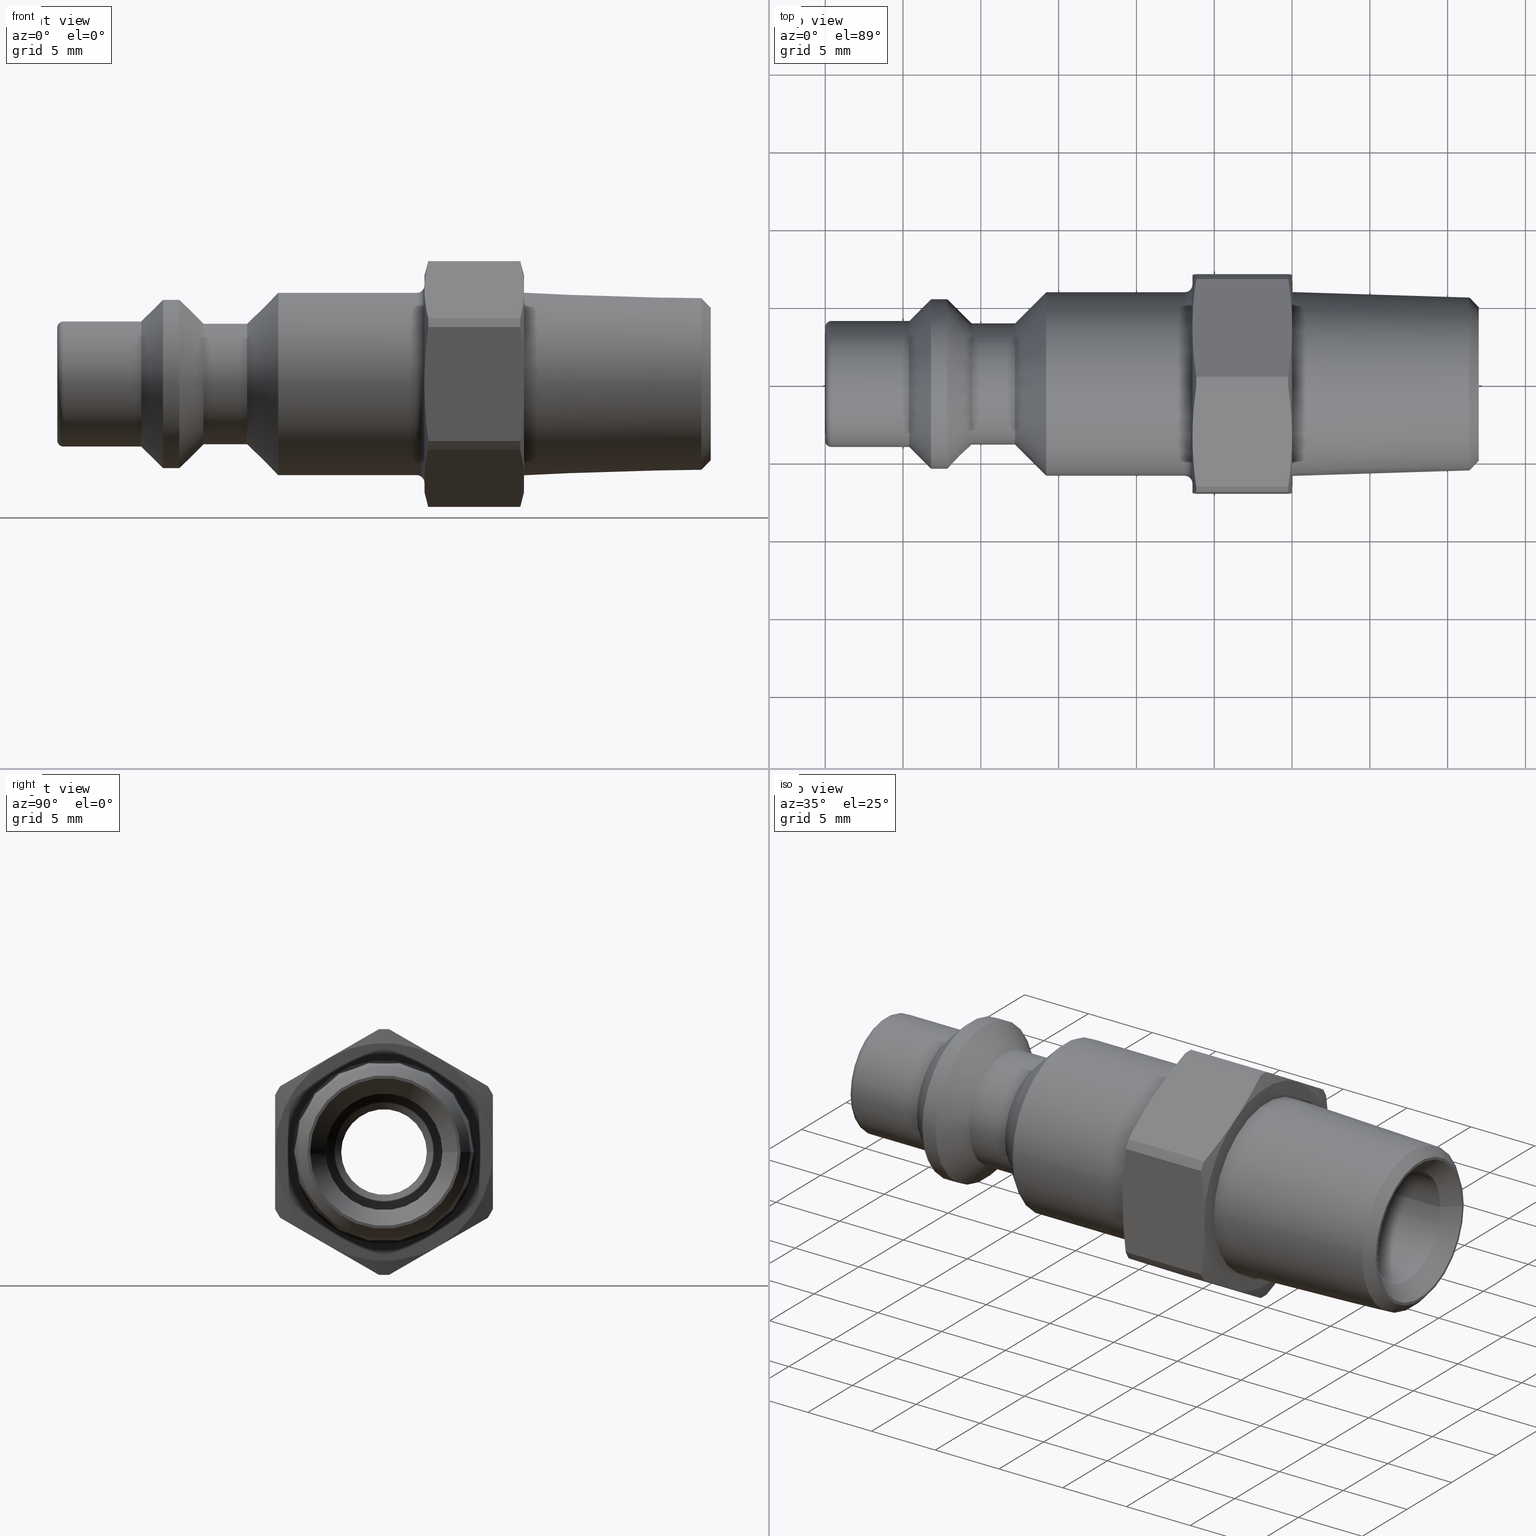
[diagram: canonical four-view strip — front | top / right | iso, engineering-drawing reading convention]
A machine part, canonical four-view strip (front | top / right | iso — engineering-drawing reading convention). The complete STEP part file that produces these views, byte-faithful:
ISO-10303-21;
HEADER;
/****************************************************************
 * Generated by software with PDElib inside                    *
 * PDElib Version v51a, created Wed 11/30/2011                  *
 * ITI Transcendata (http://www.transcendata.com/)              *
 ****************************************************************/
FILE_DESCRIPTION((''),'2;1');
FILE_NAME('J:\\3D Zeichnungen_step\\Serie 23\\23sfak13sxn.stp','2013-11-26T08:29:46',('IA176480'),(''),'Autodesk Inventor 2013','Autodesk Inventor 2013','');
FILE_SCHEMA(('AUTOMOTIVE_DESIGN { 1 0 10303 214 1 1 1 1 }'));
ENDSEC;
DATA;
#5=APPLICATION_CONTEXT('automotive design');
#6=APPLICATION_PROTOCOL_DEFINITION('International Standard','automotive_design',2001,#5);
#7=PRODUCT_CONTEXT('',#5,'mechanical');
#8=PRODUCT('D108572','D108572',$,(#7));
#9=PRODUCT_RELATED_PRODUCT_CATEGORY('part',$,(#8));
#10=PRODUCT_DEFINITION_FORMATION('',$,#8);
#11=PRODUCT_DEFINITION_CONTEXT('part definition',#5,'design');
#12=PRODUCT_DEFINITION('',$,#10,#11);
#18=(NAMED_UNIT(*)PLANE_ANGLE_UNIT()SI_UNIT($,.RADIAN.));
#19=DIMENSIONAL_EXPONENTS(0.0,0.0,0.0,0.0,0.0,0.0,0.0);
#20=PLANE_ANGLE_MEASURE_WITH_UNIT(PLANE_ANGLE_MEASURE(0.0174532925),#18);
#24=(CONVERSION_BASED_UNIT('DEGREE',#20)NAMED_UNIT(#19)PLANE_ANGLE_UNIT());
#28=(NAMED_UNIT(*)SI_UNIT($,.STERADIAN.)SOLID_ANGLE_UNIT());
#32=(LENGTH_UNIT()NAMED_UNIT(*)SI_UNIT(.MILLI.,.METRE.));
#34=UNCERTAINTY_MEASURE_WITH_UNIT(LENGTH_MEASURE(0.01),#32,'DISTANCE_ACCURACY_VALUE','');
#36=(GEOMETRIC_REPRESENTATION_CONTEXT(3)GLOBAL_UNCERTAINTY_ASSIGNED_CONTEXT((#34))GLOBAL_UNIT_ASSIGNED_CONTEXT((#24,#28,#32))REPRESENTATION_CONTEXT('None','None'));
#37=AXIS2_PLACEMENT_3D('',#38,#39,#40);
#38=CARTESIAN_POINT('',(0.0,0.0,0.0));
#39=DIRECTION('',(0.0,0.0,1.0));
#40=DIRECTION('',(1.0,0.0,0.0));
#41=SHAPE_REPRESENTATION('',(#37),#36);
#42=PRODUCT_DEFINITION_SHAPE('','',#12);
#43=SHAPE_DEFINITION_REPRESENTATION(#42,#41);
#49=(NAMED_UNIT(*)PLANE_ANGLE_UNIT()SI_UNIT($,.RADIAN.));
#50=DIMENSIONAL_EXPONENTS(0.0,0.0,0.0,0.0,0.0,0.0,0.0);
#51=PLANE_ANGLE_MEASURE_WITH_UNIT(PLANE_ANGLE_MEASURE(0.0174532925),#49);
#55=(CONVERSION_BASED_UNIT('DEGREE',#51)NAMED_UNIT(#50)PLANE_ANGLE_UNIT());
#59=(NAMED_UNIT(*)SI_UNIT($,.STERADIAN.)SOLID_ANGLE_UNIT());
#63=(LENGTH_UNIT()NAMED_UNIT(*)SI_UNIT(.MILLI.,.METRE.));
#65=UNCERTAINTY_MEASURE_WITH_UNIT(LENGTH_MEASURE(0.000001),#63,'DISTANCE_ACCURACY_VALUE','');
#67=(GEOMETRIC_REPRESENTATION_CONTEXT(3)GLOBAL_UNCERTAINTY_ASSIGNED_CONTEXT((#65))GLOBAL_UNIT_ASSIGNED_CONTEXT((#55,#59,#63))REPRESENTATION_CONTEXT('','3D'));
#68=CARTESIAN_POINT('',(41.700144760831378,0.0,-1.700629E-016));
#69=DIRECTION('',(-1.0,0.0,-5.671500E-016));
#70=DIRECTION('',(0.0,-1.0,0.0));
#71=AXIS2_PLACEMENT_3D('',#68,#69,#70);
#72=CONICAL_SURFACE('',#71,5.245357403445011,45.889999999999894);
#73=CARTESIAN_POINT('',(41.400289521662749,5.554675962514239,6.802516E-016));
#74=VERTEX_POINT('',#73);
#75=CARTESIAN_POINT('',(41.400289521662749,0.0,-3.401258E-016));
#76=DIRECTION('',(1.0,0.0,0.0));
#77=DIRECTION('',(0.0,-1.0,0.0));
#78=AXIS2_PLACEMENT_3D('',#75,#76,#77);
#79=CIRCLE('',#78,5.554675962514239);
#80=EDGE_CURVE('',#74,#74,#79,.T.);
#81=ORIENTED_EDGE('',*,*,#80,.T.);
#82=EDGE_LOOP('',(#81));
#83=FACE_OUTER_BOUND('',#82,.T.);
#84=CARTESIAN_POINT('',(42.0,4.936038844375784,-6.044904E-016));
#85=VERTEX_POINT('',#84);
#86=CARTESIAN_POINT('',(42.0,0.0,0.0));
#87=DIRECTION('',(-1.0,0.0,0.0));
#88=DIRECTION('',(0.0,-1.0,0.0));
#89=AXIS2_PLACEMENT_3D('',#86,#87,#88);
#90=CIRCLE('',#89,4.936038844375784);
#91=EDGE_CURVE('',#85,#85,#90,.T.);
#92=ORIENTED_EDGE('',*,*,#91,.T.);
#93=EDGE_LOOP('',(#92));
#94=FACE_BOUND('',#93,.T.);
#95=ADVANCED_FACE('',(#83,#94),#72,.T.);
#96=CARTESIAN_POINT('',(42.0,4.643019422187894,0.0));
#97=DIRECTION('',(1.0,0.0,0.0));
#98=DIRECTION('',(0.0,0.0,-1.0));
#99=AXIS2_PLACEMENT_3D('',#96,#97,#98);
#100=PLANE('',#99);
#101=ORIENTED_EDGE('',*,*,#91,.F.);
#102=EDGE_LOOP('',(#101));
#103=FACE_OUTER_BOUND('',#102,.T.);
#104=CARTESIAN_POINT('',(42.0,4.750000000000004,5.817072E-016));
#105=VERTEX_POINT('',#104);
#106=CARTESIAN_POINT('',(42.0,0.0,0.0));
#107=DIRECTION('',(1.0,0.0,0.0));
#108=DIRECTION('',(0.0,-1.0,0.0));
#109=AXIS2_PLACEMENT_3D('',#106,#107,#108);
#110=CIRCLE('',#109,4.750000000000004);
#111=EDGE_CURVE('',#105,#105,#110,.T.);
#112=ORIENTED_EDGE('',*,*,#111,.F.);
#113=EDGE_LOOP('',(#112));
#114=FACE_BOUND('',#113,.T.);
#115=ADVANCED_FACE('',(#103,#114),#100,.T.);
#116=CARTESIAN_POINT('',(36.0,0.0,0.0));
#117=DIRECTION('',(-1.0,0.0,0.0));
#118=DIRECTION('',(0.0,1.0,0.0));
#119=AXIS2_PLACEMENT_3D('',#116,#117,#118);
#120=CONICAL_SURFACE('',#119,5.722500000000004,1.78000000000003);
#121=CARTESIAN_POINT('',(30.0,5.908961155624222,0.0));
#122=VERTEX_POINT('',#121);
#123=CARTESIAN_POINT('',(30.0,0.0,0.0));
#124=DIRECTION('',(1.0,0.0,0.0));
#125=DIRECTION('',(0.0,1.0,0.0));
#126=AXIS2_PLACEMENT_3D('',#123,#124,#125);
#127=CIRCLE('',#126,5.908961155624222);
#128=EDGE_CURVE('',#122,#122,#127,.T.);
#129=ORIENTED_EDGE('',*,*,#128,.T.);
#130=EDGE_LOOP('',(#129));
#131=FACE_OUTER_BOUND('',#130,.T.);
#132=ORIENTED_EDGE('',*,*,#80,.F.);
#133=EDGE_LOOP('',(#132));
#134=FACE_BOUND('',#133,.T.);
#135=ADVANCED_FACE('',(#131,#134),#120,.T.);
#136=CARTESIAN_POINT('',(41.5,0.0,0.0));
#137=DIRECTION('',(1.0,0.0,0.0));
#138=DIRECTION('',(0.0,-1.0,0.0));
#139=AXIS2_PLACEMENT_3D('',#136,#137,#138);
#140=CONICAL_SURFACE('',#139,4.25,45.000000000000306);
#141=ORIENTED_EDGE('',*,*,#111,.T.);
#142=EDGE_LOOP('',(#141));
#143=FACE_OUTER_BOUND('',#142,.T.);
#144=CARTESIAN_POINT('',(41.000000000000007,3.749999999999997,-4.592425E-016));
#145=VERTEX_POINT('',#144);
#146=CARTESIAN_POINT('',(41.000000000000007,0.0,0.0));
#147=DIRECTION('',(-1.0,0.0,0.0));
#148=DIRECTION('',(0.0,-1.0,0.0));
#149=AXIS2_PLACEMENT_3D('',#146,#147,#148);
#150=CIRCLE('',#149,3.749999999999997);
#151=EDGE_CURVE('',#145,#145,#150,.T.);
#152=ORIENTED_EDGE('',*,*,#151,.T.);
#153=EDGE_LOOP('',(#152));
#154=FACE_BOUND('',#153,.T.);
#155=ADVANCED_FACE('',(#143,#154),#140,.F.);
#156=CARTESIAN_POINT('',(30.5,0.0,0.0));
#157=DIRECTION('',(1.0,0.0,0.0));
#158=DIRECTION('',(0.0,1.0,0.0));
#159=AXIS2_PLACEMENT_3D('',#156,#157,#158);
#160=CYLINDRICAL_SURFACE('',#159,3.749999999999997);
#161=CARTESIAN_POINT('',(19.0,3.749999999999991,0.0));
#162=VERTEX_POINT('',#161);
#163=CARTESIAN_POINT('',(19.0,0.0,0.0));
#164=DIRECTION('',(1.0,0.0,0.0));
#165=DIRECTION('',(0.0,1.0,0.0));
#166=AXIS2_PLACEMENT_3D('',#163,#164,#165);
#167=CIRCLE('',#166,3.749999999999991);
#168=EDGE_CURVE('',#162,#162,#167,.T.);
#169=ORIENTED_EDGE('',*,*,#168,.F.);
#170=EDGE_LOOP('',(#169));
#171=FACE_OUTER_BOUND('',#170,.T.);
#172=ORIENTED_EDGE('',*,*,#151,.F.);
#173=EDGE_LOOP('',(#172));
#174=FACE_BOUND('',#173,.T.);
#175=ADVANCED_FACE('',(#171,#174),#160,.F.);
#176=CARTESIAN_POINT('',(22.578428315368619,3.499999999999996,-6.062177826491075));
#177=DIRECTION('',(0.0,-0.499999999999999,0.866025403784439));
#178=DIRECTION('',(1.0,0.0,0.0));
#179=AXIS2_PLACEMENT_3D('',#176,#177,#178);
#180=PLANE('',#179);
#181=CARTESIAN_POINT('',(23.84115427318801,6.671356176779892,-4.231194484131024));
#182=VERTEX_POINT('',#181);
#183=CARTESIAN_POINT('',(23.600000000000001,3.499999999999996,-6.062177826491075));
#184=VERTEX_POINT('',#183);
#185=CARTESIAN_POINT('',(23.841154273188017,6.671356176779907,-4.231194484131015));
#186=CARTESIAN_POINT('',(23.600000000000001,4.989898874997301,-5.201984309946061));
#187=CARTESIAN_POINT('',(23.600000000000001,3.499999999999996,-6.062177826491075));
#195=(BOUNDED_CURVE()B_SPLINE_CURVE(2,(#185,#186,#187),.UNSPECIFIED.,.F.,.U.)B_SPLINE_CURVE_WITH_KNOTS((3,3),(0.0,0.367169590188577),.UNSPECIFIED.)CURVE()GEOMETRIC_REPRESENTATION_ITEM()RATIONAL_B_SPLINE_CURVE((1.0,1.031642241421743,1.0))REPRESENTATION_ITEM(''));
#196=EDGE_CURVE('',#182,#184,#195,.T.);
#197=ORIENTED_EDGE('',*,*,#196,.F.);
#198=CARTESIAN_POINT('',(29.758845726811984,6.671356176779892,-4.231194484131024));
#199=VERTEX_POINT('',#198);
#200=CARTESIAN_POINT('',(29.75884572681198,6.671356176779892,-4.231194484131024));
#201=DIRECTION('',(-1.0,0.0,0.0));
#202=VECTOR('',#201,5.91769145362397);
#203=LINE('',#200,#202);
#204=EDGE_CURVE('',#199,#182,#203,.T.);
#205=ORIENTED_EDGE('',*,*,#204,.F.);
#206=CARTESIAN_POINT('',(30.0,3.499999999999996,-6.062177826491075));
#207=VERTEX_POINT('',#206);
#208=CARTESIAN_POINT('',(30.0,3.499999999999996,-6.062177826491077));
#209=CARTESIAN_POINT('',(30.0,4.989898874997319,-5.201984309946052));
#210=CARTESIAN_POINT('',(29.758845726811984,6.67135617677994,-4.231194484130996));
#218=(BOUNDED_CURVE()B_SPLINE_CURVE(2,(#208,#209,#210),.UNSPECIFIED.,.F.,.U.)B_SPLINE_CURVE_WITH_KNOTS((3,3),(0.36716959018858,0.734339180377161),.UNSPECIFIED.)CURVE()GEOMETRIC_REPRESENTATION_ITEM()RATIONAL_B_SPLINE_CURVE((1.0,1.031642241421783,1.0))REPRESENTATION_ITEM(''));
#219=EDGE_CURVE('',#207,#199,#218,.T.);
#220=ORIENTED_EDGE('',*,*,#219,.F.);
#221=CARTESIAN_POINT('',(29.758845726811984,0.328643823220099,-7.893161168851127));
#222=VERTEX_POINT('',#221);
#223=CARTESIAN_POINT('',(29.758845726811984,0.328643823220052,-7.893161168851155));
#224=CARTESIAN_POINT('',(30.0,2.010101125002673,-6.922371343036099));
#225=CARTESIAN_POINT('',(30.0,3.499999999999996,-6.062177826491077));
#233=(BOUNDED_CURVE()B_SPLINE_CURVE(2,(#223,#224,#225),.UNSPECIFIED.,.F.,.U.)B_SPLINE_CURVE_WITH_KNOTS((3,3),(0.0,0.36716959018858),.UNSPECIFIED.)CURVE()GEOMETRIC_REPRESENTATION_ITEM()RATIONAL_B_SPLINE_CURVE((1.0,1.031642241421795,1.0))REPRESENTATION_ITEM(''));
#234=EDGE_CURVE('',#222,#207,#233,.T.);
#235=ORIENTED_EDGE('',*,*,#234,.F.);
#236=CARTESIAN_POINT('',(23.84115427318801,0.328643823220099,-7.893161168851127));
#237=VERTEX_POINT('',#236);
#238=CARTESIAN_POINT('',(23.84115427318801,0.328643823220099,-7.893161168851127));
#239=DIRECTION('',(1.0,0.0,0.0));
#240=VECTOR('',#239,5.91769145362397);
#241=LINE('',#238,#240);
#242=EDGE_CURVE('',#237,#222,#241,.T.);
#243=ORIENTED_EDGE('',*,*,#242,.F.);
#244=CARTESIAN_POINT('',(23.600000000000001,3.499999999999996,-6.062177826491075));
#245=CARTESIAN_POINT('',(23.600000000000001,2.010101125002689,-6.92237134303609));
#246=CARTESIAN_POINT('',(23.841154273188017,0.328643823220083,-7.893161168851137));
#254=(BOUNDED_CURVE()B_SPLINE_CURVE(2,(#244,#245,#246),.UNSPECIFIED.,.F.,.U.)B_SPLINE_CURVE_WITH_KNOTS((3,3),(0.367169590188577,0.734339180377154),.UNSPECIFIED.)CURVE()GEOMETRIC_REPRESENTATION_ITEM()RATIONAL_B_SPLINE_CURVE((1.0,1.031642241421732,1.0))REPRESENTATION_ITEM(''));
#255=EDGE_CURVE('',#184,#237,#254,.T.);
#256=ORIENTED_EDGE('',*,*,#255,.F.);
#257=EDGE_LOOP('',(#197,#205,#220,#235,#243,#256));
#258=FACE_OUTER_BOUND('',#257,.T.);
#259=ADVANCED_FACE('',(#258),#180,.F.);
#260=CARTESIAN_POINT('',(22.578428315368619,-3.500000000000003,-6.06217782649107));
#261=DIRECTION('',(0.0,0.5,0.866025403784438));
#262=DIRECTION('',(1.0,0.0,0.0));
#263=AXIS2_PLACEMENT_3D('',#260,#261,#262);
#264=PLANE('',#263);
#265=CARTESIAN_POINT('',(23.84115427318801,-0.328643823220108,-7.893161168851127));
#266=VERTEX_POINT('',#265);
#267=CARTESIAN_POINT('',(23.600000000000001,-3.500000000000004,-6.06217782649107));
#268=VERTEX_POINT('',#267);
#269=CARTESIAN_POINT('',(23.841154273188017,-0.328643823220092,-7.893161168851136));
#270=CARTESIAN_POINT('',(23.600000000000001,-2.010101125002719,-6.922371343036073));
#271=CARTESIAN_POINT('',(23.600000000000001,-3.500000000000004,-6.06217782649107));
#279=(BOUNDED_CURVE()B_SPLINE_CURVE(2,(#269,#270,#271),.UNSPECIFIED.,.F.,.U.)B_SPLINE_CURVE_WITH_KNOTS((3,3),(0.0,0.367169590188577),.UNSPECIFIED.)CURVE()GEOMETRIC_REPRESENTATION_ITEM()RATIONAL_B_SPLINE_CURVE((1.0,1.031642241421751,1.0))REPRESENTATION_ITEM(''));
#280=EDGE_CURVE('',#266,#268,#279,.T.);
#281=ORIENTED_EDGE('',*,*,#280,.F.);
#282=CARTESIAN_POINT('',(29.758845726811984,-0.328643823220107,-7.893161168851127));
#283=VERTEX_POINT('',#282);
#284=CARTESIAN_POINT('',(29.75884572681198,-0.328643823220108,-7.893161168851127));
#285=DIRECTION('',(-1.0,0.0,0.0));
#286=VECTOR('',#285,5.91769145362397);
#287=LINE('',#284,#286);
#288=EDGE_CURVE('',#283,#266,#287,.T.);
#289=ORIENTED_EDGE('',*,*,#288,.F.);
#290=CARTESIAN_POINT('',(30.0,-3.500000000000004,-6.06217782649107));
#291=VERTEX_POINT('',#290);
#292=CARTESIAN_POINT('',(30.0,-3.500000000000004,-6.06217782649107));
#293=CARTESIAN_POINT('',(30.0,-2.010101125002703,-6.922371343036085));
#294=CARTESIAN_POINT('',(29.758845726811984,-0.32864382322006,-7.893161168851155));
#302=(BOUNDED_CURVE()B_SPLINE_CURVE(2,(#292,#293,#294),.UNSPECIFIED.,.F.,.U.)B_SPLINE_CURVE_WITH_KNOTS((3,3),(0.367169590188581,0.734339180377162),.UNSPECIFIED.)CURVE()GEOMETRIC_REPRESENTATION_ITEM()RATIONAL_B_SPLINE_CURVE((1.0,1.031642241421809,1.0))REPRESENTATION_ITEM(''));
#303=EDGE_CURVE('',#291,#283,#302,.T.);
#304=ORIENTED_EDGE('',*,*,#303,.F.);
#305=CARTESIAN_POINT('',(29.758845726811984,-6.6713561767799,-4.231194484131012));
#306=VERTEX_POINT('',#305);
#307=CARTESIAN_POINT('',(29.758845726811984,-6.671356176779947,-4.231194484130985));
#308=CARTESIAN_POINT('',(30.0,-4.989898874997305,-5.201984309946056));
#309=CARTESIAN_POINT('',(30.0,-3.500000000000004,-6.06217782649107));
#317=(BOUNDED_CURVE()B_SPLINE_CURVE(2,(#307,#308,#309),.UNSPECIFIED.,.F.,.U.)B_SPLINE_CURVE_WITH_KNOTS((3,3),(0.0,0.367169590188581),.UNSPECIFIED.)CURVE()GEOMETRIC_REPRESENTATION_ITEM()RATIONAL_B_SPLINE_CURVE((1.0,1.031642241421807,1.0))REPRESENTATION_ITEM(''));
#318=EDGE_CURVE('',#306,#291,#317,.T.);
#319=ORIENTED_EDGE('',*,*,#318,.F.);
#320=CARTESIAN_POINT('',(23.84115427318801,-6.671356176779899,-4.231194484131012));
#321=VERTEX_POINT('',#320);
#322=CARTESIAN_POINT('',(23.84115427318801,-6.671356176779899,-4.231194484131012));
#323=DIRECTION('',(1.0,0.0,0.0));
#324=VECTOR('',#323,5.91769145362397);
#325=LINE('',#322,#324);
#326=EDGE_CURVE('',#321,#306,#325,.T.);
#327=ORIENTED_EDGE('',*,*,#326,.F.);
#328=CARTESIAN_POINT('',(23.600000000000001,-3.500000000000004,-6.06217782649107));
#329=CARTESIAN_POINT('',(23.600000000000001,-4.989898874997288,-5.201984309946067));
#330=CARTESIAN_POINT('',(23.841154273188017,-6.671356176779915,-4.231194484131003));
#338=(BOUNDED_CURVE()B_SPLINE_CURVE(2,(#328,#329,#330),.UNSPECIFIED.,.F.,.U.)B_SPLINE_CURVE_WITH_KNOTS((3,3),(0.367169590188577,0.734339180377154),.UNSPECIFIED.)CURVE()GEOMETRIC_REPRESENTATION_ITEM()RATIONAL_B_SPLINE_CURVE((1.0,1.031642241421757,1.0))REPRESENTATION_ITEM(''));
#339=EDGE_CURVE('',#268,#321,#338,.T.);
#340=ORIENTED_EDGE('',*,*,#339,.F.);
#341=EDGE_LOOP('',(#281,#289,#304,#319,#327,#340));
#342=FACE_OUTER_BOUND('',#341,.T.);
#343=ADVANCED_FACE('',(#342),#264,.F.);
#344=CARTESIAN_POINT('',(22.578428315368619,-7.000000000000002,1.110223E-015));
#345=DIRECTION('',(0.0,1.0,0.0));
#346=DIRECTION('',(1.0,0.0,0.0));
#347=AXIS2_PLACEMENT_3D('',#344,#345,#346);
#348=PLANE('',#347);
#349=CARTESIAN_POINT('',(23.84115427318801,-7.000000000000003,-3.661966684720108));
#350=VERTEX_POINT('',#349);
#351=CARTESIAN_POINT('',(23.600000000000001,-7.000000000000002,1.165734E-015));
#352=VERTEX_POINT('',#351);
#353=CARTESIAN_POINT('',(23.841154273188017,-7.000000000000003,-3.661966684720126));
#354=CARTESIAN_POINT('',(23.600000000000001,-7.000000000000002,-1.720387033090005));
#355=CARTESIAN_POINT('',(23.600000000000001,-7.000000000000002,1.165734E-015));
#363=(BOUNDED_CURVE()B_SPLINE_CURVE(2,(#353,#354,#355),.UNSPECIFIED.,.F.,.U.)B_SPLINE_CURVE_WITH_KNOTS((3,3),(0.0,0.367169590188577),.UNSPECIFIED.)CURVE()GEOMETRIC_REPRESENTATION_ITEM()RATIONAL_B_SPLINE_CURVE((1.0,1.031642241421747,1.0))REPRESENTATION_ITEM(''));
#364=EDGE_CURVE('',#350,#352,#363,.T.);
#365=ORIENTED_EDGE('',*,*,#364,.F.);
#366=CARTESIAN_POINT('',(29.758845726811984,-7.000000000000003,-3.661966684720109));
#367=VERTEX_POINT('',#366);
#368=CARTESIAN_POINT('',(29.75884572681198,-7.000000000000003,-3.661966684720108));
#369=DIRECTION('',(-1.0,0.0,0.0));
#370=VECTOR('',#369,5.91769145362397);
#371=LINE('',#368,#370);
#372=EDGE_CURVE('',#367,#350,#371,.T.);
#373=ORIENTED_EDGE('',*,*,#372,.F.);
#374=CARTESIAN_POINT('',(30.0,-7.000000000000002,1.165734E-015));
#375=VERTEX_POINT('',#374);
#376=CARTESIAN_POINT('',(30.0,-7.000000000000002,1.165734E-015));
#377=CARTESIAN_POINT('',(30.000000000000004,-7.000000000000002,-1.720387033089991));
#378=CARTESIAN_POINT('',(29.758845726811984,-7.000000000000003,-3.66196668472016));
#386=(BOUNDED_CURVE()B_SPLINE_CURVE(2,(#376,#377,#378),.UNSPECIFIED.,.F.,.U.)B_SPLINE_CURVE_WITH_KNOTS((3,3),(0.36716959018858,0.734339180377161),.UNSPECIFIED.)CURVE()GEOMETRIC_REPRESENTATION_ITEM()RATIONAL_B_SPLINE_CURVE((1.0,1.031642241421751,1.0))REPRESENTATION_ITEM(''));
#387=EDGE_CURVE('',#375,#367,#386,.T.);
#388=ORIENTED_EDGE('',*,*,#387,.F.);
#389=CARTESIAN_POINT('',(29.758845726811984,-7.000000000000001,3.661966684720111));
#390=VERTEX_POINT('',#389);
#391=CARTESIAN_POINT('',(29.758845726811984,-7.000000000000001,3.661966684720163));
#392=CARTESIAN_POINT('',(30.000000000000004,-7.000000000000002,1.720387033089994));
#393=CARTESIAN_POINT('',(30.0,-7.000000000000002,1.165734E-015));
#401=(BOUNDED_CURVE()B_SPLINE_CURVE(2,(#391,#392,#393),.UNSPECIFIED.,.F.,.U.)B_SPLINE_CURVE_WITH_KNOTS((3,3),(0.0,0.36716959018858),.UNSPECIFIED.)CURVE()GEOMETRIC_REPRESENTATION_ITEM()RATIONAL_B_SPLINE_CURVE((1.0,1.031642241421746,1.0))REPRESENTATION_ITEM(''));
#402=EDGE_CURVE('',#390,#375,#401,.T.);
#403=ORIENTED_EDGE('',*,*,#402,.F.);
#404=CARTESIAN_POINT('',(23.84115427318801,-7.000000000000001,3.66196668472011));
#405=VERTEX_POINT('',#404);
#406=CARTESIAN_POINT('',(23.84115427318801,-7.000000000000001,3.66196668472011));
#407=DIRECTION('',(1.0,0.0,0.0));
#408=VECTOR('',#407,5.91769145362397);
#409=LINE('',#406,#408);
#410=EDGE_CURVE('',#405,#390,#409,.T.);
#411=ORIENTED_EDGE('',*,*,#410,.F.);
#412=CARTESIAN_POINT('',(23.600000000000001,-7.000000000000002,1.165734E-015));
#413=CARTESIAN_POINT('',(23.600000000000001,-7.000000000000002,1.720387033090007));
#414=CARTESIAN_POINT('',(23.841154273188017,-7.000000000000002,3.661966684720129));
#422=(BOUNDED_CURVE()B_SPLINE_CURVE(2,(#412,#413,#414),.UNSPECIFIED.,.F.,.U.)B_SPLINE_CURVE_WITH_KNOTS((3,3),(0.367169590188577,0.734339180377154),.UNSPECIFIED.)CURVE()GEOMETRIC_REPRESENTATION_ITEM()RATIONAL_B_SPLINE_CURVE((1.0,1.031642241421744,1.0))REPRESENTATION_ITEM(''));
#423=EDGE_CURVE('',#352,#405,#422,.T.);
#424=ORIENTED_EDGE('',*,*,#423,.F.);
#425=EDGE_LOOP('',(#365,#373,#388,#403,#411,#424));
#426=FACE_OUTER_BOUND('',#425,.T.);
#427=ADVANCED_FACE('',(#426),#348,.F.);
#428=CARTESIAN_POINT('',(22.578428315368619,-3.5,6.062177826491072));
#429=DIRECTION('',(0.0,0.5,-0.866025403784439));
#430=DIRECTION('',(1.0,0.0,0.0));
#431=AXIS2_PLACEMENT_3D('',#428,#429,#430);
#432=PLANE('',#431);
#433=CARTESIAN_POINT('',(23.84115427318801,-6.671356176779895,4.231194484131019));
#434=VERTEX_POINT('',#433);
#435=CARTESIAN_POINT('',(23.600000000000001,-3.5,6.062177826491073));
#436=VERTEX_POINT('',#435);
#437=CARTESIAN_POINT('',(23.841154273188017,-6.671356176779907,4.231194484131012));
#438=CARTESIAN_POINT('',(23.600000000000001,-4.989898874997304,5.201984309946059));
#439=CARTESIAN_POINT('',(23.600000000000001,-3.499999999999999,6.062177826491073));
#447=(BOUNDED_CURVE()B_SPLINE_CURVE(2,(#437,#438,#439),.UNSPECIFIED.,.F.,.U.)B_SPLINE_CURVE_WITH_KNOTS((3,3),(0.0,0.367169590188577),.UNSPECIFIED.)CURVE()GEOMETRIC_REPRESENTATION_ITEM()RATIONAL_B_SPLINE_CURVE((1.0,1.031642241421739,1.0))REPRESENTATION_ITEM(''));
#448=EDGE_CURVE('',#434,#436,#447,.T.);
#449=ORIENTED_EDGE('',*,*,#448,.F.);
#450=CARTESIAN_POINT('',(29.758845726811984,-6.671356176779896,4.231194484131019));
#451=VERTEX_POINT('',#450);
#452=CARTESIAN_POINT('',(29.75884572681198,-6.671356176779895,4.231194484131019));
#453=DIRECTION('',(-1.0,0.0,0.0));
#454=VECTOR('',#453,5.91769145362397);
#455=LINE('',#452,#454);
#456=EDGE_CURVE('',#451,#434,#455,.T.);
#457=ORIENTED_EDGE('',*,*,#456,.F.);
#458=CARTESIAN_POINT('',(30.0,-3.5,6.062177826491073));
#459=VERTEX_POINT('',#458);
#460=CARTESIAN_POINT('',(30.0,-3.499999999999999,6.062177826491073));
#461=CARTESIAN_POINT('',(30.0,-4.989898874997324,5.201984309946047));
#462=CARTESIAN_POINT('',(29.758845726811984,-6.671356176779942,4.231194484130992));
#470=(BOUNDED_CURVE()B_SPLINE_CURVE(2,(#460,#461,#462),.UNSPECIFIED.,.F.,.U.)B_SPLINE_CURVE_WITH_KNOTS((3,3),(0.36716959018858,0.734339180377161),.UNSPECIFIED.)CURVE()GEOMETRIC_REPRESENTATION_ITEM()RATIONAL_B_SPLINE_CURVE((1.0,1.031642241421797,1.0))REPRESENTATION_ITEM(''));
#471=EDGE_CURVE('',#459,#451,#470,.T.);
#472=ORIENTED_EDGE('',*,*,#471,.F.);
#473=CARTESIAN_POINT('',(29.758845726811984,-0.328643823220104,7.893161168851127));
#474=VERTEX_POINT('',#473);
#475=CARTESIAN_POINT('',(29.758845726811984,-0.328643823220057,7.893161168851154));
#476=CARTESIAN_POINT('',(30.0,-2.010101125002676,6.922371343036097));
#477=CARTESIAN_POINT('',(30.0,-3.499999999999999,6.062177826491073));
#485=(BOUNDED_CURVE()B_SPLINE_CURVE(2,(#475,#476,#477),.UNSPECIFIED.,.F.,.U.)B_SPLINE_CURVE_WITH_KNOTS((3,3),(0.0,0.36716959018858),.UNSPECIFIED.)CURVE()GEOMETRIC_REPRESENTATION_ITEM()RATIONAL_B_SPLINE_CURVE((1.0,1.031642241421797,1.0))REPRESENTATION_ITEM(''));
#486=EDGE_CURVE('',#474,#459,#485,.T.);
#487=ORIENTED_EDGE('',*,*,#486,.F.);
#488=CARTESIAN_POINT('',(23.84115427318801,-0.328643823220105,7.893161168851126));
#489=VERTEX_POINT('',#488);
#490=CARTESIAN_POINT('',(23.84115427318801,-0.328643823220105,7.893161168851126));
#491=DIRECTION('',(1.0,0.0,0.0));
#492=VECTOR('',#491,5.91769145362397);
#493=LINE('',#490,#492);
#494=EDGE_CURVE('',#489,#474,#493,.T.);
#495=ORIENTED_EDGE('',*,*,#494,.F.);
#496=CARTESIAN_POINT('',(23.600000000000001,-3.499999999999999,6.062177826491073));
#497=CARTESIAN_POINT('',(23.600000000000001,-2.010101125002695,6.922371343036088));
#498=CARTESIAN_POINT('',(23.841154273188017,-0.328643823220091,7.893161168851135));
#506=(BOUNDED_CURVE()B_SPLINE_CURVE(2,(#496,#497,#498),.UNSPECIFIED.,.F.,.U.)B_SPLINE_CURVE_WITH_KNOTS((3,3),(0.367169590188577,0.734339180377153),.UNSPECIFIED.)CURVE()GEOMETRIC_REPRESENTATION_ITEM()RATIONAL_B_SPLINE_CURVE((1.0,1.031642241421737,1.0))REPRESENTATION_ITEM(''));
#507=EDGE_CURVE('',#436,#489,#506,.T.);
#508=ORIENTED_EDGE('',*,*,#507,.F.);
#509=EDGE_LOOP('',(#449,#457,#472,#487,#495,#508));
#510=FACE_OUTER_BOUND('',#509,.T.);
#511=ADVANCED_FACE('',(#510),#432,.F.);
#512=CARTESIAN_POINT('',(22.578428315368619,3.500000000000001,6.062177826491071));
#513=DIRECTION('',(0.0,-0.5,-0.866025403784439));
#514=DIRECTION('',(1.0,0.0,0.0));
#515=AXIS2_PLACEMENT_3D('',#512,#513,#514);
#516=PLANE('',#515);
#517=CARTESIAN_POINT('',(23.84115427318801,0.328643823220105,7.893161168851126));
#518=VERTEX_POINT('',#517);
#519=CARTESIAN_POINT('',(23.600000000000001,3.500000000000001,6.062177826491071));
#520=VERTEX_POINT('',#519);
#521=CARTESIAN_POINT('',(23.841154273188017,0.328643823220089,7.893161168851136));
#522=CARTESIAN_POINT('',(23.600000000000001,2.010101125002731,6.922371343036067));
#523=CARTESIAN_POINT('',(23.599999999999998,3.500000000000001,6.062177826491071));
#531=(BOUNDED_CURVE()B_SPLINE_CURVE(2,(#521,#522,#523),.UNSPECIFIED.,.F.,.U.)B_SPLINE_CURVE_WITH_KNOTS((3,3),(0.0,0.367169590188577),.UNSPECIFIED.)CURVE()GEOMETRIC_REPRESENTATION_ITEM()RATIONAL_B_SPLINE_CURVE((1.0,1.031642241421772,1.0))REPRESENTATION_ITEM(''));
#532=EDGE_CURVE('',#518,#520,#531,.T.);
#533=ORIENTED_EDGE('',*,*,#532,.F.);
#534=CARTESIAN_POINT('',(29.758845726811984,0.328643823220104,7.893161168851127));
#535=VERTEX_POINT('',#534);
#536=CARTESIAN_POINT('',(29.75884572681198,0.328643823220105,7.893161168851126));
#537=DIRECTION('',(-1.0,0.0,0.0));
#538=VECTOR('',#537,5.91769145362397);
#539=LINE('',#536,#538);
#540=EDGE_CURVE('',#535,#518,#539,.T.);
#541=ORIENTED_EDGE('',*,*,#540,.F.);
#542=CARTESIAN_POINT('',(30.0,3.500000000000001,6.062177826491071));
#543=VERTEX_POINT('',#542);
#544=CARTESIAN_POINT('',(30.000000000000004,3.500000000000001,6.062177826491071));
#545=CARTESIAN_POINT('',(30.000000000000004,2.010101125002714,6.922371343036076));
#546=CARTESIAN_POINT('',(29.758845726811984,0.328643823220057,7.893161168851155));
#554=(BOUNDED_CURVE()B_SPLINE_CURVE(2,(#544,#545,#546),.UNSPECIFIED.,.F.,.U.)B_SPLINE_CURVE_WITH_KNOTS((3,3),(0.367169590188581,0.734339180377162),.UNSPECIFIED.)CURVE()GEOMETRIC_REPRESENTATION_ITEM()RATIONAL_B_SPLINE_CURVE((1.0,1.031642241421656,1.0))REPRESENTATION_ITEM(''));
#555=EDGE_CURVE('',#543,#535,#554,.T.);
#556=ORIENTED_EDGE('',*,*,#555,.F.);
#557=CARTESIAN_POINT('',(29.758845726811984,6.671356176779898,4.231194484131015));
#558=VERTEX_POINT('',#557);
#559=CARTESIAN_POINT('',(29.758845726811984,6.671356176779945,4.231194484130987));
#560=CARTESIAN_POINT('',(30.000000000000004,4.989898874997288,5.201984309946067));
#561=CARTESIAN_POINT('',(30.000000000000004,3.500000000000001,6.062177826491071));
#569=(BOUNDED_CURVE()B_SPLINE_CURVE(2,(#559,#560,#561),.UNSPECIFIED.,.F.,.U.)B_SPLINE_CURVE_WITH_KNOTS((3,3),(0.0,0.367169590188581),.UNSPECIFIED.)CURVE()GEOMETRIC_REPRESENTATION_ITEM()RATIONAL_B_SPLINE_CURVE((1.0,1.031642241421666,1.0))REPRESENTATION_ITEM(''));
#570=EDGE_CURVE('',#558,#543,#569,.T.);
#571=ORIENTED_EDGE('',*,*,#570,.F.);
#572=CARTESIAN_POINT('',(23.84115427318801,6.671356176779897,4.231194484131015));
#573=VERTEX_POINT('',#572);
#574=CARTESIAN_POINT('',(23.84115427318801,6.671356176779897,4.231194484131015));
#575=DIRECTION('',(1.0,0.0,0.0));
#576=VECTOR('',#575,5.91769145362397);
#577=LINE('',#574,#576);
#578=EDGE_CURVE('',#573,#558,#577,.T.);
#579=ORIENTED_EDGE('',*,*,#578,.F.);
#580=CARTESIAN_POINT('',(23.599999999999998,3.500000000000001,6.062177826491071));
#581=CARTESIAN_POINT('',(23.600000000000001,4.989898874997271,5.201984309946075));
#582=CARTESIAN_POINT('',(23.841154273188017,6.671356176779915,4.231194484131005));
#590=(BOUNDED_CURVE()B_SPLINE_CURVE(2,(#580,#581,#582),.UNSPECIFIED.,.F.,.U.)B_SPLINE_CURVE_WITH_KNOTS((3,3),(0.367169590188577,0.734339180377154),.UNSPECIFIED.)CURVE()GEOMETRIC_REPRESENTATION_ITEM()RATIONAL_B_SPLINE_CURVE((1.0,1.031642241421763,1.0))REPRESENTATION_ITEM(''));
#591=EDGE_CURVE('',#520,#573,#590,.T.);
#592=ORIENTED_EDGE('',*,*,#591,.F.);
#593=EDGE_LOOP('',(#533,#541,#556,#571,#579,#592));
#594=FACE_OUTER_BOUND('',#593,.T.);
#595=ADVANCED_FACE('',(#594),#516,.F.);
#596=CARTESIAN_POINT('',(29.879422863405996,0.0,0.0));
#597=DIRECTION('',(-1.0,0.0,0.0));
#598=DIRECTION('',(0.0,1.0,0.0));
#599=AXIS2_PLACEMENT_3D('',#596,#597,#598);
#600=CONICAL_SURFACE('',#599,7.450000000000001,74.999999999999844);
#601=ORIENTED_EDGE('',*,*,#570,.T.);
#602=CARTESIAN_POINT('',(30.0,7.000000000000001,0.0));
#603=VERTEX_POINT('',#602);
#604=CARTESIAN_POINT('',(30.0,0.0,0.0));
#605=DIRECTION('',(1.0,0.0,0.0));
#606=DIRECTION('',(0.0,1.0,0.0));
#607=AXIS2_PLACEMENT_3D('',#604,#605,#606);
#608=CIRCLE('',#607,7.000000000000001);
#609=EDGE_CURVE('',#603,#543,#608,.T.);
#610=ORIENTED_EDGE('',*,*,#609,.F.);
#611=CARTESIAN_POINT('',(29.758845726811984,7.000000000000001,3.661966684720112));
#612=VERTEX_POINT('',#611);
#613=CARTESIAN_POINT('',(30.000000000000004,7.000000000000001,0.0));
#614=CARTESIAN_POINT('',(30.000000000000004,7.000000000000001,1.720387033089975));
#615=CARTESIAN_POINT('',(29.758845726811987,7.000000000000001,3.661966684720132));
#623=(BOUNDED_CURVE()B_SPLINE_CURVE(2,(#613,#614,#615),.UNSPECIFIED.,.F.,.U.)B_SPLINE_CURVE_WITH_KNOTS((3,3),(0.367169590188577,0.734339180377155),.UNSPECIFIED.)CURVE()GEOMETRIC_REPRESENTATION_ITEM()RATIONAL_B_SPLINE_CURVE((1.0,1.03164224142169,1.0))REPRESENTATION_ITEM(''));
#624=EDGE_CURVE('',#603,#612,#623,.T.);
#625=ORIENTED_EDGE('',*,*,#624,.T.);
#626=CARTESIAN_POINT('',(29.758845726811987,0.0,0.0));
#627=DIRECTION('',(1.0,0.0,0.0));
#628=DIRECTION('',(0.0,1.0,0.0));
#629=AXIS2_PLACEMENT_3D('',#626,#627,#628);
#630=CIRCLE('',#629,7.900000000000001);
#631=EDGE_CURVE('',#612,#558,#630,.T.);
#632=ORIENTED_EDGE('',*,*,#631,.T.);
#633=EDGE_LOOP('',(#601,#610,#625,#632));
#634=FACE_OUTER_BOUND('',#633,.T.);
#635=ADVANCED_FACE('',(#634),#600,.T.);
#636=CARTESIAN_POINT('',(29.879422863405996,0.0,0.0));
#637=DIRECTION('',(-1.0,0.0,0.0));
#638=DIRECTION('',(0.0,1.0,0.0));
#639=AXIS2_PLACEMENT_3D('',#636,#637,#638);
#640=CONICAL_SURFACE('',#639,7.450000000000001,74.999999999999844);
#641=ORIENTED_EDGE('',*,*,#486,.T.);
#642=CARTESIAN_POINT('',(30.0,0.0,0.0));
#643=DIRECTION('',(1.0,0.0,0.0));
#644=DIRECTION('',(0.0,1.0,0.0));
#645=AXIS2_PLACEMENT_3D('',#642,#643,#644);
#646=CIRCLE('',#645,7.000000000000001);
#647=EDGE_CURVE('',#543,#459,#646,.T.);
#648=ORIENTED_EDGE('',*,*,#647,.F.);
#649=ORIENTED_EDGE('',*,*,#555,.T.);
#650=CARTESIAN_POINT('',(29.758845726811987,0.0,0.0));
#651=DIRECTION('',(1.0,0.0,0.0));
#652=DIRECTION('',(0.0,1.0,0.0));
#653=AXIS2_PLACEMENT_3D('',#650,#651,#652);
#654=CIRCLE('',#653,7.900000000000001);
#655=EDGE_CURVE('',#535,#474,#654,.T.);
#656=ORIENTED_EDGE('',*,*,#655,.T.);
#657=EDGE_LOOP('',(#641,#648,#649,#656));
#658=FACE_OUTER_BOUND('',#657,.T.);
#659=ADVANCED_FACE('',(#658),#640,.T.);
#660=CARTESIAN_POINT('',(29.879422863405996,0.0,0.0));
#661=DIRECTION('',(-1.0,0.0,0.0));
#662=DIRECTION('',(0.0,1.0,0.0));
#663=AXIS2_PLACEMENT_3D('',#660,#661,#662);
#664=CONICAL_SURFACE('',#663,7.450000000000001,74.999999999999844);
#665=ORIENTED_EDGE('',*,*,#402,.T.);
#666=CARTESIAN_POINT('',(30.0,0.0,0.0));
#667=DIRECTION('',(1.0,0.0,0.0));
#668=DIRECTION('',(0.0,1.0,0.0));
#669=AXIS2_PLACEMENT_3D('',#666,#667,#668);
#670=CIRCLE('',#669,7.000000000000001);
#671=EDGE_CURVE('',#459,#375,#670,.T.);
#672=ORIENTED_EDGE('',*,*,#671,.F.);
#673=ORIENTED_EDGE('',*,*,#471,.T.);
#674=CARTESIAN_POINT('',(29.758845726811987,0.0,0.0));
#675=DIRECTION('',(1.0,0.0,0.0));
#676=DIRECTION('',(0.0,1.0,0.0));
#677=AXIS2_PLACEMENT_3D('',#674,#675,#676);
#678=CIRCLE('',#677,7.900000000000001);
#679=EDGE_CURVE('',#451,#390,#678,.T.);
#680=ORIENTED_EDGE('',*,*,#679,.T.);
#681=EDGE_LOOP('',(#665,#672,#673,#680));
#682=FACE_OUTER_BOUND('',#681,.T.);
#683=ADVANCED_FACE('',(#682),#664,.T.);
#684=CARTESIAN_POINT('',(29.879422863405996,0.0,0.0));
#685=DIRECTION('',(-1.0,0.0,0.0));
#686=DIRECTION('',(0.0,1.0,0.0));
#687=AXIS2_PLACEMENT_3D('',#684,#685,#686);
#688=CONICAL_SURFACE('',#687,7.450000000000001,74.999999999999844);
#689=ORIENTED_EDGE('',*,*,#318,.T.);
#690=CARTESIAN_POINT('',(30.0,0.0,0.0));
#691=DIRECTION('',(1.0,0.0,0.0));
#692=DIRECTION('',(0.0,1.0,0.0));
#693=AXIS2_PLACEMENT_3D('',#690,#691,#692);
#694=CIRCLE('',#693,7.000000000000001);
#695=EDGE_CURVE('',#375,#291,#694,.T.);
#696=ORIENTED_EDGE('',*,*,#695,.F.);
#697=ORIENTED_EDGE('',*,*,#387,.T.);
#698=CARTESIAN_POINT('',(29.758845726811987,0.0,0.0));
#699=DIRECTION('',(1.0,0.0,0.0));
#700=DIRECTION('',(0.0,1.0,0.0));
#701=AXIS2_PLACEMENT_3D('',#698,#699,#700);
#702=CIRCLE('',#701,7.900000000000001);
#703=EDGE_CURVE('',#367,#306,#702,.T.);
#704=ORIENTED_EDGE('',*,*,#703,.T.);
#705=EDGE_LOOP('',(#689,#696,#697,#704));
#706=FACE_OUTER_BOUND('',#705,.T.);
#707=ADVANCED_FACE('',(#706),#688,.T.);
#708=CARTESIAN_POINT('',(29.879422863405996,0.0,0.0));
#709=DIRECTION('',(-1.0,0.0,0.0));
#710=DIRECTION('',(0.0,1.0,0.0));
#711=AXIS2_PLACEMENT_3D('',#708,#709,#710);
#712=CONICAL_SURFACE('',#711,7.450000000000001,74.999999999999844);
#713=ORIENTED_EDGE('',*,*,#219,.T.);
#714=CARTESIAN_POINT('',(29.758845726811984,7.000000000000001,-3.661966684720112));
#715=VERTEX_POINT('',#714);
#716=CARTESIAN_POINT('',(29.758845726811987,0.0,0.0));
#717=DIRECTION('',(1.0,0.0,0.0));
#718=DIRECTION('',(0.0,1.0,0.0));
#719=AXIS2_PLACEMENT_3D('',#716,#717,#718);
#720=CIRCLE('',#719,7.900000000000001);
#721=EDGE_CURVE('',#199,#715,#720,.T.);
#722=ORIENTED_EDGE('',*,*,#721,.T.);
#723=CARTESIAN_POINT('',(29.758845726811987,7.000000000000001,-3.661966684720132));
#724=CARTESIAN_POINT('',(30.000000000000004,7.000000000000001,-1.720387033089975));
#725=CARTESIAN_POINT('',(30.000000000000004,7.000000000000001,0.0));
#733=(BOUNDED_CURVE()B_SPLINE_CURVE(2,(#723,#724,#725),.UNSPECIFIED.,.F.,.U.)B_SPLINE_CURVE_WITH_KNOTS((3,3),(0.0,0.367169590188577),.UNSPECIFIED.)CURVE()GEOMETRIC_REPRESENTATION_ITEM()RATIONAL_B_SPLINE_CURVE((1.0,1.03164224142169,1.0))REPRESENTATION_ITEM(''));
#734=EDGE_CURVE('',#715,#603,#733,.T.);
#735=ORIENTED_EDGE('',*,*,#734,.T.);
#736=CARTESIAN_POINT('',(30.0,0.0,0.0));
#737=DIRECTION('',(1.0,0.0,0.0));
#738=DIRECTION('',(0.0,1.0,0.0));
#739=AXIS2_PLACEMENT_3D('',#736,#737,#738);
#740=CIRCLE('',#739,7.000000000000001);
#741=EDGE_CURVE('',#207,#603,#740,.T.);
#742=ORIENTED_EDGE('',*,*,#741,.F.);
#743=EDGE_LOOP('',(#713,#722,#735,#742));
#744=FACE_OUTER_BOUND('',#743,.T.);
#745=ADVANCED_FACE('',(#744),#712,.T.);
#746=CARTESIAN_POINT('',(29.879422863405996,0.0,0.0));
#747=DIRECTION('',(-1.0,0.0,0.0));
#748=DIRECTION('',(0.0,1.0,0.0));
#749=AXIS2_PLACEMENT_3D('',#746,#747,#748);
#750=CONICAL_SURFACE('',#749,7.450000000000001,74.999999999999844);
#751=ORIENTED_EDGE('',*,*,#234,.T.);
#752=CARTESIAN_POINT('',(30.0,0.0,0.0));
#753=DIRECTION('',(1.0,0.0,0.0));
#754=DIRECTION('',(0.0,1.0,0.0));
#755=AXIS2_PLACEMENT_3D('',#752,#753,#754);
#756=CIRCLE('',#755,7.000000000000001);
#757=EDGE_CURVE('',#291,#207,#756,.T.);
#758=ORIENTED_EDGE('',*,*,#757,.F.);
#759=ORIENTED_EDGE('',*,*,#303,.T.);
#760=CARTESIAN_POINT('',(29.758845726811987,0.0,0.0));
#761=DIRECTION('',(1.0,0.0,0.0));
#762=DIRECTION('',(0.0,1.0,0.0));
#763=AXIS2_PLACEMENT_3D('',#760,#761,#762);
#764=CIRCLE('',#763,7.900000000000001);
#765=EDGE_CURVE('',#283,#222,#764,.T.);
#766=ORIENTED_EDGE('',*,*,#765,.T.);
#767=EDGE_LOOP('',(#751,#758,#759,#766));
#768=FACE_OUTER_BOUND('',#767,.T.);
#769=ADVANCED_FACE('',(#768),#750,.T.);
#770=CARTESIAN_POINT('',(26.800000000000001,0.0,0.0));
#771=DIRECTION('',(1.0,0.0,0.0));
#772=DIRECTION('',(0.0,1.0,0.0));
#773=AXIS2_PLACEMENT_3D('',#770,#771,#772);
#774=CYLINDRICAL_SURFACE('',#773,7.9);
#775=ORIENTED_EDGE('',*,*,#204,.T.);
#776=CARTESIAN_POINT('',(23.84115427318801,7.000000000000001,-3.661966684720111));
#777=VERTEX_POINT('',#776);
#778=CARTESIAN_POINT('',(23.841154273188017,0.0,0.0));
#779=DIRECTION('',(1.0,0.0,0.0));
#780=DIRECTION('',(0.0,1.0,0.0));
#781=AXIS2_PLACEMENT_3D('',#778,#779,#780);
#782=CIRCLE('',#781,7.9);
#783=EDGE_CURVE('',#182,#777,#782,.T.);
#784=ORIENTED_EDGE('',*,*,#783,.T.);
#785=CARTESIAN_POINT('',(23.84115427318801,7.000000000000001,-3.661966684720111));
#786=DIRECTION('',(1.0,0.0,0.0));
#787=VECTOR('',#786,5.91769145362397);
#788=LINE('',#785,#787);
#789=EDGE_CURVE('',#777,#715,#788,.T.);
#790=ORIENTED_EDGE('',*,*,#789,.T.);
#791=ORIENTED_EDGE('',*,*,#721,.F.);
#792=EDGE_LOOP('',(#775,#784,#790,#791));
#793=FACE_OUTER_BOUND('',#792,.T.);
#794=ADVANCED_FACE('',(#793),#774,.T.);
#795=CARTESIAN_POINT('',(26.800000000000001,0.0,0.0));
#796=DIRECTION('',(1.0,0.0,0.0));
#797=DIRECTION('',(0.0,1.0,0.0));
#798=AXIS2_PLACEMENT_3D('',#795,#796,#797);
#799=CYLINDRICAL_SURFACE('',#798,7.9);
#800=ORIENTED_EDGE('',*,*,#578,.T.);
#801=ORIENTED_EDGE('',*,*,#631,.F.);
#802=CARTESIAN_POINT('',(23.84115427318801,7.000000000000001,3.661966684720111));
#803=VERTEX_POINT('',#802);
#804=CARTESIAN_POINT('',(29.75884572681198,7.000000000000001,3.661966684720111));
#805=DIRECTION('',(-1.0,0.0,0.0));
#806=VECTOR('',#805,5.91769145362397);
#807=LINE('',#804,#806);
#808=EDGE_CURVE('',#612,#803,#807,.T.);
#809=ORIENTED_EDGE('',*,*,#808,.T.);
#810=CARTESIAN_POINT('',(23.841154273188017,0.0,0.0));
#811=DIRECTION('',(1.0,0.0,0.0));
#812=DIRECTION('',(0.0,1.0,0.0));
#813=AXIS2_PLACEMENT_3D('',#810,#811,#812);
#814=CIRCLE('',#813,7.9);
#815=EDGE_CURVE('',#803,#573,#814,.T.);
#816=ORIENTED_EDGE('',*,*,#815,.T.);
#817=EDGE_LOOP('',(#800,#801,#809,#816));
#818=FACE_OUTER_BOUND('',#817,.T.);
#819=ADVANCED_FACE('',(#818),#799,.T.);
#820=CARTESIAN_POINT('',(26.800000000000001,0.0,0.0));
#821=DIRECTION('',(1.0,0.0,0.0));
#822=DIRECTION('',(0.0,1.0,0.0));
#823=AXIS2_PLACEMENT_3D('',#820,#821,#822);
#824=CYLINDRICAL_SURFACE('',#823,7.9);
#825=ORIENTED_EDGE('',*,*,#494,.T.);
#826=ORIENTED_EDGE('',*,*,#655,.F.);
#827=ORIENTED_EDGE('',*,*,#540,.T.);
#828=CARTESIAN_POINT('',(23.841154273188017,0.0,0.0));
#829=DIRECTION('',(1.0,0.0,0.0));
#830=DIRECTION('',(0.0,1.0,0.0));
#831=AXIS2_PLACEMENT_3D('',#828,#829,#830);
#832=CIRCLE('',#831,7.9);
#833=EDGE_CURVE('',#518,#489,#832,.T.);
#834=ORIENTED_EDGE('',*,*,#833,.T.);
#835=EDGE_LOOP('',(#825,#826,#827,#834));
#836=FACE_OUTER_BOUND('',#835,.T.);
#837=ADVANCED_FACE('',(#836),#824,.T.);
#838=CARTESIAN_POINT('',(26.800000000000001,0.0,0.0));
#839=DIRECTION('',(1.0,0.0,0.0));
#840=DIRECTION('',(0.0,1.0,0.0));
#841=AXIS2_PLACEMENT_3D('',#838,#839,#840);
#842=CYLINDRICAL_SURFACE('',#841,7.9);
#843=ORIENTED_EDGE('',*,*,#410,.T.);
#844=ORIENTED_EDGE('',*,*,#679,.F.);
#845=ORIENTED_EDGE('',*,*,#456,.T.);
#846=CARTESIAN_POINT('',(23.841154273188017,0.0,0.0));
#847=DIRECTION('',(1.0,0.0,0.0));
#848=DIRECTION('',(0.0,1.0,0.0));
#849=AXIS2_PLACEMENT_3D('',#846,#847,#848);
#850=CIRCLE('',#849,7.9);
#851=EDGE_CURVE('',#434,#405,#850,.T.);
#852=ORIENTED_EDGE('',*,*,#851,.T.);
#853=EDGE_LOOP('',(#843,#844,#845,#852));
#854=FACE_OUTER_BOUND('',#853,.T.);
#855=ADVANCED_FACE('',(#854),#842,.T.);
#856=CARTESIAN_POINT('',(26.800000000000001,0.0,0.0));
#857=DIRECTION('',(1.0,0.0,0.0));
#858=DIRECTION('',(0.0,1.0,0.0));
#859=AXIS2_PLACEMENT_3D('',#856,#857,#858);
#860=CYLINDRICAL_SURFACE('',#859,7.9);
#861=ORIENTED_EDGE('',*,*,#326,.T.);
#862=ORIENTED_EDGE('',*,*,#703,.F.);
#863=ORIENTED_EDGE('',*,*,#372,.T.);
#864=CARTESIAN_POINT('',(23.841154273188017,0.0,0.0));
#865=DIRECTION('',(1.0,0.0,0.0));
#866=DIRECTION('',(0.0,1.0,0.0));
#867=AXIS2_PLACEMENT_3D('',#864,#865,#866);
#868=CIRCLE('',#867,7.9);
#869=EDGE_CURVE('',#350,#321,#868,.T.);
#870=ORIENTED_EDGE('',*,*,#869,.T.);
#871=EDGE_LOOP('',(#861,#862,#863,#870));
#872=FACE_OUTER_BOUND('',#871,.T.);
#873=ADVANCED_FACE('',(#872),#860,.T.);
#874=CARTESIAN_POINT('',(23.720577136594009,0.0,0.0));
#875=DIRECTION('',(1.0,0.0,0.0));
#876=DIRECTION('',(0.0,1.0,0.0));
#877=AXIS2_PLACEMENT_3D('',#874,#875,#876);
#878=CONICAL_SURFACE('',#877,7.450000000000001,74.999999999999844);
#879=ORIENTED_EDGE('',*,*,#196,.T.);
#880=CARTESIAN_POINT('',(23.600000000000001,7.000000000000001,0.0));
#881=VERTEX_POINT('',#880);
#882=CARTESIAN_POINT('',(23.600000000000001,0.0,0.0));
#883=DIRECTION('',(1.0,0.0,0.0));
#884=DIRECTION('',(0.0,1.0,0.0));
#885=AXIS2_PLACEMENT_3D('',#882,#883,#884);
#886=CIRCLE('',#885,7.000000000000001);
#887=EDGE_CURVE('',#184,#881,#886,.T.);
#888=ORIENTED_EDGE('',*,*,#887,.T.);
#889=CARTESIAN_POINT('',(23.599999999999998,7.000000000000001,0.0));
#890=CARTESIAN_POINT('',(23.599999999999998,7.000000000000001,-1.720387033089972));
#891=CARTESIAN_POINT('',(23.841154273188017,7.000000000000001,-3.661966684720132));
#899=(BOUNDED_CURVE()B_SPLINE_CURVE(2,(#889,#890,#891),.UNSPECIFIED.,.F.,.U.)B_SPLINE_CURVE_WITH_KNOTS((3,3),(0.367169590188577,0.734339180377155),.UNSPECIFIED.)CURVE()GEOMETRIC_REPRESENTATION_ITEM()RATIONAL_B_SPLINE_CURVE((1.0,1.031642241421698,1.0))REPRESENTATION_ITEM(''));
#900=EDGE_CURVE('',#881,#777,#899,.T.);
#901=ORIENTED_EDGE('',*,*,#900,.T.);
#902=ORIENTED_EDGE('',*,*,#783,.F.);
#903=EDGE_LOOP('',(#879,#888,#901,#902));
#904=FACE_OUTER_BOUND('',#903,.T.);
#905=ADVANCED_FACE('',(#904),#878,.T.);
#906=CARTESIAN_POINT('',(23.720577136594009,0.0,0.0));
#907=DIRECTION('',(1.0,0.0,0.0));
#908=DIRECTION('',(0.0,1.0,0.0));
#909=AXIS2_PLACEMENT_3D('',#906,#907,#908);
#910=CONICAL_SURFACE('',#909,7.450000000000001,74.999999999999844);
#911=ORIENTED_EDGE('',*,*,#591,.T.);
#912=ORIENTED_EDGE('',*,*,#815,.F.);
#913=CARTESIAN_POINT('',(23.841154273188017,7.000000000000001,3.661966684720132));
#914=CARTESIAN_POINT('',(23.599999999999998,7.000000000000001,1.720387033089972));
#915=CARTESIAN_POINT('',(23.599999999999998,7.000000000000001,0.0));
#923=(BOUNDED_CURVE()B_SPLINE_CURVE(2,(#913,#914,#915),.UNSPECIFIED.,.F.,.U.)B_SPLINE_CURVE_WITH_KNOTS((3,3),(0.0,0.367169590188577),.UNSPECIFIED.)CURVE()GEOMETRIC_REPRESENTATION_ITEM()RATIONAL_B_SPLINE_CURVE((1.0,1.031642241421698,1.0))REPRESENTATION_ITEM(''));
#924=EDGE_CURVE('',#803,#881,#923,.T.);
#925=ORIENTED_EDGE('',*,*,#924,.T.);
#926=CARTESIAN_POINT('',(23.600000000000001,0.0,0.0));
#927=DIRECTION('',(1.0,0.0,0.0));
#928=DIRECTION('',(0.0,1.0,0.0));
#929=AXIS2_PLACEMENT_3D('',#926,#927,#928);
#930=CIRCLE('',#929,7.000000000000001);
#931=EDGE_CURVE('',#881,#520,#930,.T.);
#932=ORIENTED_EDGE('',*,*,#931,.T.);
#933=EDGE_LOOP('',(#911,#912,#925,#932));
#934=FACE_OUTER_BOUND('',#933,.T.);
#935=ADVANCED_FACE('',(#934),#910,.T.);
#936=CARTESIAN_POINT('',(23.720577136594009,0.0,0.0));
#937=DIRECTION('',(1.0,0.0,0.0));
#938=DIRECTION('',(0.0,1.0,0.0));
#939=AXIS2_PLACEMENT_3D('',#936,#937,#938);
#940=CONICAL_SURFACE('',#939,7.450000000000001,74.999999999999844);
#941=ORIENTED_EDGE('',*,*,#507,.T.);
#942=ORIENTED_EDGE('',*,*,#833,.F.);
#943=ORIENTED_EDGE('',*,*,#532,.T.);
#944=CARTESIAN_POINT('',(23.600000000000001,0.0,0.0));
#945=DIRECTION('',(1.0,0.0,0.0));
#946=DIRECTION('',(0.0,1.0,0.0));
#947=AXIS2_PLACEMENT_3D('',#944,#945,#946);
#948=CIRCLE('',#947,7.000000000000001);
#949=EDGE_CURVE('',#520,#436,#948,.T.);
#950=ORIENTED_EDGE('',*,*,#949,.T.);
#951=EDGE_LOOP('',(#941,#942,#943,#950));
#952=FACE_OUTER_BOUND('',#951,.T.);
#953=ADVANCED_FACE('',(#952),#940,.T.);
#954=CARTESIAN_POINT('',(23.720577136594009,0.0,0.0));
#955=DIRECTION('',(1.0,0.0,0.0));
#956=DIRECTION('',(0.0,1.0,0.0));
#957=AXIS2_PLACEMENT_3D('',#954,#955,#956);
#958=CONICAL_SURFACE('',#957,7.450000000000001,74.999999999999844);
#959=ORIENTED_EDGE('',*,*,#423,.T.);
#960=ORIENTED_EDGE('',*,*,#851,.F.);
#961=ORIENTED_EDGE('',*,*,#448,.T.);
#962=CARTESIAN_POINT('',(23.600000000000001,0.0,0.0));
#963=DIRECTION('',(1.0,0.0,0.0));
#964=DIRECTION('',(0.0,1.0,0.0));
#965=AXIS2_PLACEMENT_3D('',#962,#963,#964);
#966=CIRCLE('',#965,7.000000000000001);
#967=EDGE_CURVE('',#436,#352,#966,.T.);
#968=ORIENTED_EDGE('',*,*,#967,.T.);
#969=EDGE_LOOP('',(#959,#960,#961,#968));
#970=FACE_OUTER_BOUND('',#969,.T.);
#971=ADVANCED_FACE('',(#970),#958,.T.);
#972=CARTESIAN_POINT('',(23.720577136594009,0.0,0.0));
#973=DIRECTION('',(1.0,0.0,0.0));
#974=DIRECTION('',(0.0,1.0,0.0));
#975=AXIS2_PLACEMENT_3D('',#972,#973,#974);
#976=CONICAL_SURFACE('',#975,7.450000000000001,74.999999999999844);
#977=ORIENTED_EDGE('',*,*,#339,.T.);
#978=ORIENTED_EDGE('',*,*,#869,.F.);
#979=ORIENTED_EDGE('',*,*,#364,.T.);
#980=CARTESIAN_POINT('',(23.600000000000001,0.0,0.0));
#981=DIRECTION('',(1.0,0.0,0.0));
#982=DIRECTION('',(0.0,1.0,0.0));
#983=AXIS2_PLACEMENT_3D('',#980,#981,#982);
#984=CIRCLE('',#983,7.000000000000001);
#985=EDGE_CURVE('',#352,#268,#984,.T.);
#986=ORIENTED_EDGE('',*,*,#985,.T.);
#987=EDGE_LOOP('',(#977,#978,#979,#986));
#988=FACE_OUTER_BOUND('',#987,.T.);
#989=ADVANCED_FACE('',(#988),#976,.T.);
#990=CARTESIAN_POINT('',(22.578428315368619,7.000000000000001,0.0));
#991=DIRECTION('',(0.0,-1.0,0.0));
#992=DIRECTION('',(1.0,0.0,0.0));
#993=AXIS2_PLACEMENT_3D('',#990,#991,#992);
#994=PLANE('',#993);
#995=ORIENTED_EDGE('',*,*,#924,.F.);
#996=ORIENTED_EDGE('',*,*,#808,.F.);
#997=ORIENTED_EDGE('',*,*,#624,.F.);
#998=ORIENTED_EDGE('',*,*,#734,.F.);
#999=ORIENTED_EDGE('',*,*,#789,.F.);
#1000=ORIENTED_EDGE('',*,*,#900,.F.);
#1001=EDGE_LOOP('',(#995,#996,#997,#998,#999,#1000));
#1002=FACE_OUTER_BOUND('',#1001,.T.);
#1003=ADVANCED_FACE('',(#1002),#994,.F.);
#1004=CARTESIAN_POINT('',(0.4,0.0,0.0));
#1005=DIRECTION('',(1.0,0.0,0.0));
#1006=DIRECTION('',(0.0,0.0,-1.0));
#1007=AXIS2_PLACEMENT_3D('',#1004,#1005,#1006);
#1008=TOROIDAL_SURFACE('',#1007,3.650000000000001,0.4);
#1009=CARTESIAN_POINT('',(-3.469447E-016,3.650000000000001,0.0));
#1010=VERTEX_POINT('',#1009);
#1011=CARTESIAN_POINT('',(-3.469447E-016,0.0,0.0));
#1012=DIRECTION('',(1.0,0.0,0.0));
#1013=DIRECTION('',(0.0,-1.0,0.0));
#1014=AXIS2_PLACEMENT_3D('',#1011,#1012,#1013);
#1015=CIRCLE('',#1014,3.650000000000001);
#1016=EDGE_CURVE('',#1010,#1010,#1015,.T.);
#1017=ORIENTED_EDGE('',*,*,#1016,.T.);
#1018=EDGE_LOOP('',(#1017));
#1019=FACE_OUTER_BOUND('',#1018,.T.);
#1020=CARTESIAN_POINT('',(0.4,4.050000000000001,-9.919639E-016));
#1021=VERTEX_POINT('',#1020);
#1022=CARTESIAN_POINT('',(0.4,0.0,0.0));
#1023=DIRECTION('',(-1.0,0.0,0.0));
#1024=DIRECTION('',(0.0,-1.0,0.0));
#1025=AXIS2_PLACEMENT_3D('',#1022,#1023,#1024);
#1026=CIRCLE('',#1025,4.050000000000001);
#1027=EDGE_CURVE('',#1021,#1021,#1026,.T.);
#1028=ORIENTED_EDGE('',*,*,#1027,.T.);
#1029=EDGE_LOOP('',(#1028));
#1030=FACE_BOUND('',#1029,.T.);
#1031=ADVANCED_FACE('',(#1019,#1030),#1008,.T.);
#1032=CARTESIAN_POINT('',(2.7,0.0,0.0));
#1033=DIRECTION('',(1.0,0.0,0.0));
#1034=DIRECTION('',(0.0,1.0,0.0));
#1035=AXIS2_PLACEMENT_3D('',#1032,#1033,#1034);
#1036=CYLINDRICAL_SURFACE('',#1035,4.050000000000001);
#1037=CARTESIAN_POINT('',(5.4,4.050000000000002,0.0));
#1038=VERTEX_POINT('',#1037);
#1039=CARTESIAN_POINT('',(5.4,0.0,0.0));
#1040=DIRECTION('',(1.0,0.0,0.0));
#1041=DIRECTION('',(0.0,1.0,0.0));
#1042=AXIS2_PLACEMENT_3D('',#1039,#1040,#1041);
#1043=CIRCLE('',#1042,4.050000000000002);
#1044=EDGE_CURVE('',#1038,#1038,#1043,.T.);
#1045=ORIENTED_EDGE('',*,*,#1044,.F.);
#1046=EDGE_LOOP('',(#1045));
#1047=FACE_OUTER_BOUND('',#1046,.T.);
#1048=ORIENTED_EDGE('',*,*,#1027,.F.);
#1049=EDGE_LOOP('',(#1048));
#1050=FACE_BOUND('',#1049,.T.);
#1051=ADVANCED_FACE('',(#1047,#1050),#1036,.T.);
#1052=CARTESIAN_POINT('',(-3.719865E-016,3.399999999999995,0.0));
#1053=DIRECTION('',(-1.0,0.0,0.0));
#1054=DIRECTION('',(0.0,0.0,1.0));
#1055=AXIS2_PLACEMENT_3D('',#1052,#1053,#1054);
#1056=PLANE('',#1055);
#1057=ORIENTED_EDGE('',*,*,#1016,.F.);
#1058=EDGE_LOOP('',(#1057));
#1059=FACE_OUTER_BOUND('',#1058,.T.);
#1060=CARTESIAN_POINT('',(0.0,2.749999999999991,0.0));
#1061=VERTEX_POINT('',#1060);
#1062=CARTESIAN_POINT('',(0.0,0.0,0.0));
#1063=DIRECTION('',(1.0,0.0,0.0));
#1064=DIRECTION('',(0.0,1.0,0.0));
#1065=AXIS2_PLACEMENT_3D('',#1062,#1063,#1064);
#1066=CIRCLE('',#1065,2.749999999999991);
#1067=EDGE_CURVE('',#1061,#1061,#1066,.T.);
#1068=ORIENTED_EDGE('',*,*,#1067,.T.);
#1069=EDGE_LOOP('',(#1068));
#1070=FACE_BOUND('',#1069,.T.);
#1071=ADVANCED_FACE('',(#1059,#1070),#1056,.T.);
#1072=CARTESIAN_POINT('',(23.100000000000005,0.0,0.0));
#1073=DIRECTION('',(1.0,0.0,0.0));
#1074=DIRECTION('',(0.0,0.0,-1.0));
#1075=AXIS2_PLACEMENT_3D('',#1072,#1073,#1074);
#1076=TOROIDAL_SURFACE('',#1075,6.400000000000002,0.5);
#1077=CARTESIAN_POINT('',(23.100000000000005,5.900000000000002,0.0));
#1078=VERTEX_POINT('',#1077);
#1079=CARTESIAN_POINT('',(23.100000000000005,0.0,0.0));
#1080=DIRECTION('',(1.0,0.0,0.0));
#1081=DIRECTION('',(0.0,-1.0,0.0));
#1082=AXIS2_PLACEMENT_3D('',#1079,#1080,#1081);
#1083=CIRCLE('',#1082,5.900000000000002);
#1084=EDGE_CURVE('',#1078,#1078,#1083,.T.);
#1085=ORIENTED_EDGE('',*,*,#1084,.T.);
#1086=EDGE_LOOP('',(#1085));
#1087=FACE_OUTER_BOUND('',#1086,.T.);
#1088=CARTESIAN_POINT('',(23.600000000000001,6.400000000000002,-1.567548E-015));
#1089=VERTEX_POINT('',#1088);
#1090=CARTESIAN_POINT('',(23.600000000000001,0.0,0.0));
#1091=DIRECTION('',(-1.0,0.0,0.0));
#1092=DIRECTION('',(0.0,-1.0,0.0));
#1093=AXIS2_PLACEMENT_3D('',#1090,#1091,#1092);
#1094=CIRCLE('',#1093,6.400000000000002);
#1095=EDGE_CURVE('',#1089,#1089,#1094,.T.);
#1096=ORIENTED_EDGE('',*,*,#1095,.T.);
#1097=EDGE_LOOP('',(#1096));
#1098=FACE_BOUND('',#1097,.T.);
#1099=ADVANCED_FACE('',(#1087,#1098),#1076,.F.);
#1100=CARTESIAN_POINT('',(18.900000000000002,0.0,0.0));
#1101=DIRECTION('',(1.0,0.0,0.0));
#1102=DIRECTION('',(0.0,1.0,0.0));
#1103=AXIS2_PLACEMENT_3D('',#1100,#1101,#1102);
#1104=CYLINDRICAL_SURFACE('',#1103,5.900000000000002);
#1105=CARTESIAN_POINT('',(14.199999999999998,5.9,0.0));
#1106=VERTEX_POINT('',#1105);
#1107=CARTESIAN_POINT('',(14.199999999999998,0.0,0.0));
#1108=DIRECTION('',(1.0,0.0,0.0));
#1109=DIRECTION('',(0.0,1.0,0.0));
#1110=AXIS2_PLACEMENT_3D('',#1107,#1108,#1109);
#1111=CIRCLE('',#1110,5.9);
#1112=EDGE_CURVE('',#1106,#1106,#1111,.T.);
#1113=ORIENTED_EDGE('',*,*,#1112,.T.);
#1114=EDGE_LOOP('',(#1113));
#1115=FACE_OUTER_BOUND('',#1114,.T.);
#1116=ORIENTED_EDGE('',*,*,#1084,.F.);
#1117=EDGE_LOOP('',(#1116));
#1118=FACE_BOUND('',#1117,.T.);
#1119=ADVANCED_FACE('',(#1115,#1118),#1104,.T.);
#1120=CARTESIAN_POINT('',(23.600000000000001,6.450000000000003,0.0));
#1121=DIRECTION('',(-1.0,0.0,0.0));
#1122=DIRECTION('',(0.0,0.0,1.0));
#1123=AXIS2_PLACEMENT_3D('',#1120,#1121,#1122);
#1124=PLANE('',#1123);
#1125=ORIENTED_EDGE('',*,*,#931,.F.);
#1126=ORIENTED_EDGE('',*,*,#887,.F.);
#1127=CARTESIAN_POINT('',(23.600000000000001,0.0,0.0));
#1128=DIRECTION('',(1.0,0.0,0.0));
#1129=DIRECTION('',(0.0,1.0,0.0));
#1130=AXIS2_PLACEMENT_3D('',#1127,#1128,#1129);
#1131=CIRCLE('',#1130,7.000000000000001);
#1132=EDGE_CURVE('',#268,#184,#1131,.T.);
#1133=ORIENTED_EDGE('',*,*,#1132,.F.);
#1134=ORIENTED_EDGE('',*,*,#985,.F.);
#1135=ORIENTED_EDGE('',*,*,#967,.F.);
#1136=ORIENTED_EDGE('',*,*,#949,.F.);
#1137=EDGE_LOOP('',(#1125,#1126,#1133,#1134,#1135,#1136));
#1138=FACE_OUTER_BOUND('',#1137,.T.);
#1139=ORIENTED_EDGE('',*,*,#1095,.F.);
#1140=EDGE_LOOP('',(#1139));
#1141=FACE_BOUND('',#1140,.T.);
#1142=ADVANCED_FACE('',(#1138,#1141),#1124,.T.);
#1143=CARTESIAN_POINT('',(6.099999999999999,0.0,0.0));
#1144=DIRECTION('',(1.0,0.0,0.0));
#1145=DIRECTION('',(0.0,1.0,0.0));
#1146=AXIS2_PLACEMENT_3D('',#1143,#1144,#1145);
#1147=CONICAL_SURFACE('',#1146,4.750000000000001,45.00000000000005);
#1148=CARTESIAN_POINT('',(6.799999999999997,5.45,0.0));
#1149=VERTEX_POINT('',#1148);
#1150=CARTESIAN_POINT('',(6.799999999999997,0.0,0.0));
#1151=DIRECTION('',(1.0,0.0,0.0));
#1152=DIRECTION('',(0.0,1.0,0.0));
#1153=AXIS2_PLACEMENT_3D('',#1150,#1151,#1152);
#1154=CIRCLE('',#1153,5.45);
#1155=EDGE_CURVE('',#1149,#1149,#1154,.T.);
#1156=ORIENTED_EDGE('',*,*,#1155,.F.);
#1157=EDGE_LOOP('',(#1156));
#1158=FACE_OUTER_BOUND('',#1157,.T.);
#1159=ORIENTED_EDGE('',*,*,#1044,.T.);
#1160=EDGE_LOOP('',(#1159));
#1161=FACE_BOUND('',#1160,.T.);
#1162=ADVANCED_FACE('',(#1158,#1161),#1147,.T.);
#1163=CARTESIAN_POINT('',(7.324999999999998,0.0,0.0));
#1164=DIRECTION('',(1.0,0.0,0.0));
#1165=DIRECTION('',(0.0,1.0,0.0));
#1166=AXIS2_PLACEMENT_3D('',#1163,#1164,#1165);
#1167=CYLINDRICAL_SURFACE('',#1166,5.45);
#1168=CARTESIAN_POINT('',(7.849999999999998,5.45,0.0));
#1169=VERTEX_POINT('',#1168);
#1170=CARTESIAN_POINT('',(7.849999999999998,0.0,0.0));
#1171=DIRECTION('',(1.0,0.0,0.0));
#1172=DIRECTION('',(0.0,1.0,0.0));
#1173=AXIS2_PLACEMENT_3D('',#1170,#1171,#1172);
#1174=CIRCLE('',#1173,5.45);
#1175=EDGE_CURVE('',#1169,#1169,#1174,.T.);
#1176=ORIENTED_EDGE('',*,*,#1175,.F.);
#1177=EDGE_LOOP('',(#1176));
#1178=FACE_OUTER_BOUND('',#1177,.T.);
#1179=ORIENTED_EDGE('',*,*,#1155,.T.);
#1180=EDGE_LOOP('',(#1179));
#1181=FACE_BOUND('',#1180,.T.);
#1182=ADVANCED_FACE('',(#1178,#1181),#1167,.T.);
#1183=CARTESIAN_POINT('',(8.625,0.0,0.0));
#1184=DIRECTION('',(-1.0,0.0,0.0));
#1185=DIRECTION('',(0.0,1.0,0.0));
#1186=AXIS2_PLACEMENT_3D('',#1183,#1184,#1185);
#1187=CONICAL_SURFACE('',#1186,4.675000000000001,44.999999999999957);
#1188=CARTESIAN_POINT('',(9.4,3.9,0.0));
#1189=VERTEX_POINT('',#1188);
#1190=CARTESIAN_POINT('',(9.4,0.0,0.0));
#1191=DIRECTION('',(1.0,0.0,0.0));
#1192=DIRECTION('',(0.0,1.0,0.0));
#1193=AXIS2_PLACEMENT_3D('',#1190,#1191,#1192);
#1194=CIRCLE('',#1193,3.9);
#1195=EDGE_CURVE('',#1189,#1189,#1194,.T.);
#1196=ORIENTED_EDGE('',*,*,#1195,.F.);
#1197=EDGE_LOOP('',(#1196));
#1198=FACE_OUTER_BOUND('',#1197,.T.);
#1199=ORIENTED_EDGE('',*,*,#1175,.T.);
#1200=EDGE_LOOP('',(#1199));
#1201=FACE_BOUND('',#1200,.T.);
#1202=ADVANCED_FACE('',(#1198,#1201),#1187,.T.);
#1203=CARTESIAN_POINT('',(10.800000000000001,0.0,0.0));
#1204=DIRECTION('',(1.0,0.0,0.0));
#1205=DIRECTION('',(0.0,1.0,0.0));
#1206=AXIS2_PLACEMENT_3D('',#1203,#1204,#1205);
#1207=CYLINDRICAL_SURFACE('',#1206,3.9);
#1208=CARTESIAN_POINT('',(12.199999999999999,3.900000000000001,0.0));
#1209=VERTEX_POINT('',#1208);
#1210=CARTESIAN_POINT('',(12.199999999999999,0.0,0.0));
#1211=DIRECTION('',(1.0,0.0,0.0));
#1212=DIRECTION('',(0.0,1.0,0.0));
#1213=AXIS2_PLACEMENT_3D('',#1210,#1211,#1212);
#1214=CIRCLE('',#1213,3.900000000000001);
#1215=EDGE_CURVE('',#1209,#1209,#1214,.T.);
#1216=ORIENTED_EDGE('',*,*,#1215,.F.);
#1217=EDGE_LOOP('',(#1216));
#1218=FACE_OUTER_BOUND('',#1217,.T.);
#1219=ORIENTED_EDGE('',*,*,#1195,.T.);
#1220=EDGE_LOOP('',(#1219));
#1221=FACE_BOUND('',#1220,.T.);
#1222=ADVANCED_FACE('',(#1218,#1221),#1207,.T.);
#1223=CARTESIAN_POINT('',(13.199999999999999,0.0,0.0));
#1224=DIRECTION('',(1.0,0.0,0.0));
#1225=DIRECTION('',(0.0,1.0,0.0));
#1226=AXIS2_PLACEMENT_3D('',#1223,#1224,#1225);
#1227=CONICAL_SURFACE('',#1226,4.900000000000001,45.000000000000043);
#1228=ORIENTED_EDGE('',*,*,#1112,.F.);
#1229=EDGE_LOOP('',(#1228));
#1230=FACE_OUTER_BOUND('',#1229,.T.);
#1231=ORIENTED_EDGE('',*,*,#1215,.T.);
#1232=EDGE_LOOP('',(#1231));
#1233=FACE_BOUND('',#1232,.T.);
#1234=ADVANCED_FACE('',(#1230,#1233),#1227,.T.);
#1235=CARTESIAN_POINT('',(23.720577136594009,0.0,0.0));
#1236=DIRECTION('',(1.0,0.0,0.0));
#1237=DIRECTION('',(0.0,1.0,0.0));
#1238=AXIS2_PLACEMENT_3D('',#1235,#1236,#1237);
#1239=CONICAL_SURFACE('',#1238,7.450000000000001,74.999999999999844);
#1240=ORIENTED_EDGE('',*,*,#255,.T.);
#1241=CARTESIAN_POINT('',(23.841154273188017,0.0,0.0));
#1242=DIRECTION('',(1.0,0.0,0.0));
#1243=DIRECTION('',(0.0,1.0,0.0));
#1244=AXIS2_PLACEMENT_3D('',#1241,#1242,#1243);
#1245=CIRCLE('',#1244,7.9);
#1246=EDGE_CURVE('',#266,#237,#1245,.T.);
#1247=ORIENTED_EDGE('',*,*,#1246,.F.);
#1248=ORIENTED_EDGE('',*,*,#280,.T.);
#1249=ORIENTED_EDGE('',*,*,#1132,.T.);
#1250=EDGE_LOOP('',(#1240,#1247,#1248,#1249));
#1251=FACE_OUTER_BOUND('',#1250,.T.);
#1252=ADVANCED_FACE('',(#1251),#1239,.T.);
#1253=CARTESIAN_POINT('',(26.800000000000001,0.0,0.0));
#1254=DIRECTION('',(1.0,0.0,0.0));
#1255=DIRECTION('',(0.0,1.0,0.0));
#1256=AXIS2_PLACEMENT_3D('',#1253,#1254,#1255);
#1257=CYLINDRICAL_SURFACE('',#1256,7.9);
#1258=ORIENTED_EDGE('',*,*,#242,.T.);
#1259=ORIENTED_EDGE('',*,*,#765,.F.);
#1260=ORIENTED_EDGE('',*,*,#288,.T.);
#1261=ORIENTED_EDGE('',*,*,#1246,.T.);
#1262=EDGE_LOOP('',(#1258,#1259,#1260,#1261));
#1263=FACE_OUTER_BOUND('',#1262,.T.);
#1264=ADVANCED_FACE('',(#1263),#1257,.T.);
#1265=CARTESIAN_POINT('',(30.0,6.454480577812111,0.0));
#1266=DIRECTION('',(1.0,0.0,0.0));
#1267=DIRECTION('',(0.0,0.0,-1.0));
#1268=AXIS2_PLACEMENT_3D('',#1265,#1266,#1267);
#1269=PLANE('',#1268);
#1270=ORIENTED_EDGE('',*,*,#609,.T.);
#1271=ORIENTED_EDGE('',*,*,#647,.T.);
#1272=ORIENTED_EDGE('',*,*,#671,.T.);
#1273=ORIENTED_EDGE('',*,*,#695,.T.);
#1274=ORIENTED_EDGE('',*,*,#757,.T.);
#1275=ORIENTED_EDGE('',*,*,#741,.T.);
#1276=EDGE_LOOP('',(#1270,#1271,#1272,#1273,#1274,#1275));
#1277=FACE_OUTER_BOUND('',#1276,.T.);
#1278=ORIENTED_EDGE('',*,*,#128,.F.);
#1279=EDGE_LOOP('',(#1278));
#1280=FACE_BOUND('',#1279,.T.);
#1281=ADVANCED_FACE('',(#1277,#1280),#1269,.T.);
#1282=CARTESIAN_POINT('',(18.711324865405189,0.0,0.0));
#1283=DIRECTION('',(1.0,0.0,0.0));
#1284=DIRECTION('',(0.0,1.0,0.0));
#1285=AXIS2_PLACEMENT_3D('',#1282,#1283,#1284);
#1286=CONICAL_SURFACE('',#1285,3.249999999999995,59.999999999999929);
#1287=CARTESIAN_POINT('',(18.422649730810377,2.749999999999999,0.0));
#1288=VERTEX_POINT('',#1287);
#1289=CARTESIAN_POINT('',(18.422649730810377,0.0,0.0));
#1290=DIRECTION('',(1.0,0.0,0.0));
#1291=DIRECTION('',(0.0,1.0,0.0));
#1292=AXIS2_PLACEMENT_3D('',#1289,#1290,#1291);
#1293=CIRCLE('',#1292,2.749999999999999);
#1294=EDGE_CURVE('',#1288,#1288,#1293,.T.);
#1295=ORIENTED_EDGE('',*,*,#1294,.F.);
#1296=EDGE_LOOP('',(#1295));
#1297=FACE_OUTER_BOUND('',#1296,.T.);
#1298=ORIENTED_EDGE('',*,*,#168,.T.);
#1299=EDGE_LOOP('',(#1298));
#1300=FACE_BOUND('',#1299,.T.);
#1301=ADVANCED_FACE('',(#1297,#1300),#1286,.F.);
#1302=CARTESIAN_POINT('',(9.211324865405189,0.0,0.0));
#1303=DIRECTION('',(1.0,0.0,0.0));
#1304=DIRECTION('',(0.0,1.0,0.0));
#1305=AXIS2_PLACEMENT_3D('',#1302,#1303,#1304);
#1306=CYLINDRICAL_SURFACE('',#1305,2.749999999999995);
#1307=ORIENTED_EDGE('',*,*,#1067,.F.);
#1308=EDGE_LOOP('',(#1307));
#1309=FACE_OUTER_BOUND('',#1308,.T.);
#1310=ORIENTED_EDGE('',*,*,#1294,.T.);
#1311=EDGE_LOOP('',(#1310));
#1312=FACE_BOUND('',#1311,.T.);
#1313=ADVANCED_FACE('',(#1309,#1312),#1306,.F.);
#1314=CLOSED_SHELL('',(#95,#115,#135,#155,#175,#259,#343,#427,#511,#595,#635,#659,#683,#707,#745,#769,#794,#819,#837,#855,#873,#905,#935,#953,#971,#989,#1003,#1031,#1051,#1071,#1099,#1119,#1142,#1162,#1182,#1202,#1222,#1234,#1252,#1264,#1281,#1301,#1313));
#1315=MANIFOLD_SOLID_BREP('Solid1',#1314);
#1316=COLOUR_RGB('Metal-Steel',0.639216005802155,0.639216005802155,0.662745475769043);
#1317=FILL_AREA_STYLE_COLOUR('Metal-Steel',#1316);
#1318=FILL_AREA_STYLE('Metal-Steel',(#1317));
#1319=SURFACE_STYLE_FILL_AREA(#1318);
#1320=SURFACE_SIDE_STYLE('Metal-Steel',(#1319));
#1321=SURFACE_STYLE_USAGE(.BOTH.,#1320);
#1322=PRESENTATION_STYLE_ASSIGNMENT((#1321));
#1323=STYLED_ITEM('',(#1322),#1315);
#1324=MECHANICAL_DESIGN_GEOMETRIC_PRESENTATION_REPRESENTATION('',(#1323),#36);
#1325=ADVANCED_BREP_SHAPE_REPRESENTATION('ABSR',(#1315),#36);
#1326=SHAPE_REPRESENTATION_RELATIONSHIP('SRR','None',#1325,#41);
ENDSEC;
END-ISO-10303-21;
